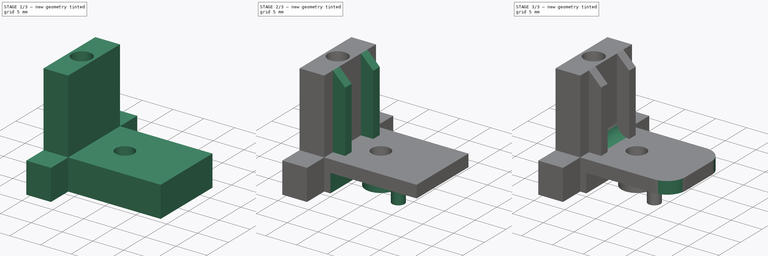
[diagram: build sequence overview — one tinted view per stage of 3, left to right]
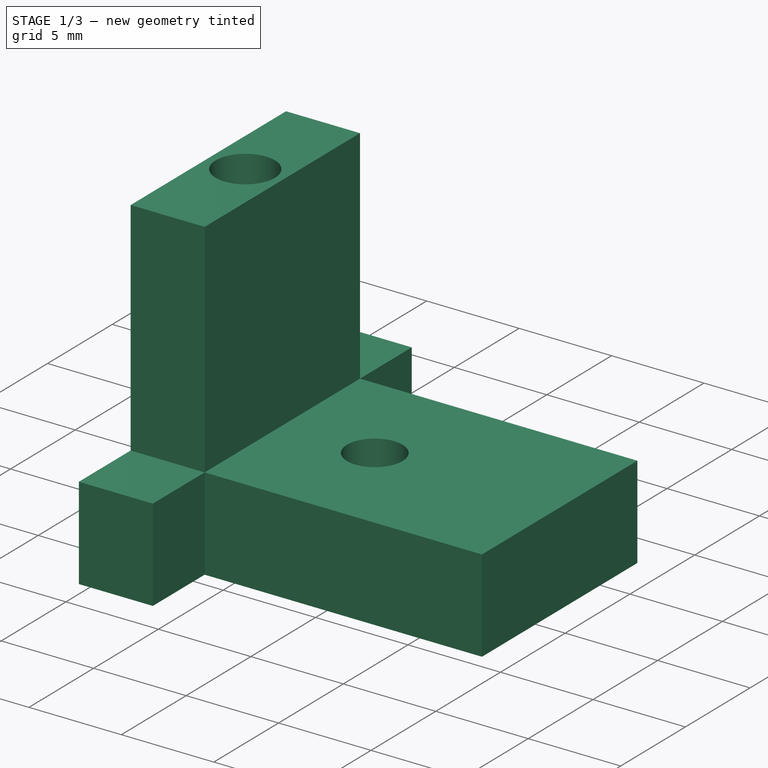
[diagram: stage 1 of 3 — iso view after this stage's code; geometry added in this stage tinted green]
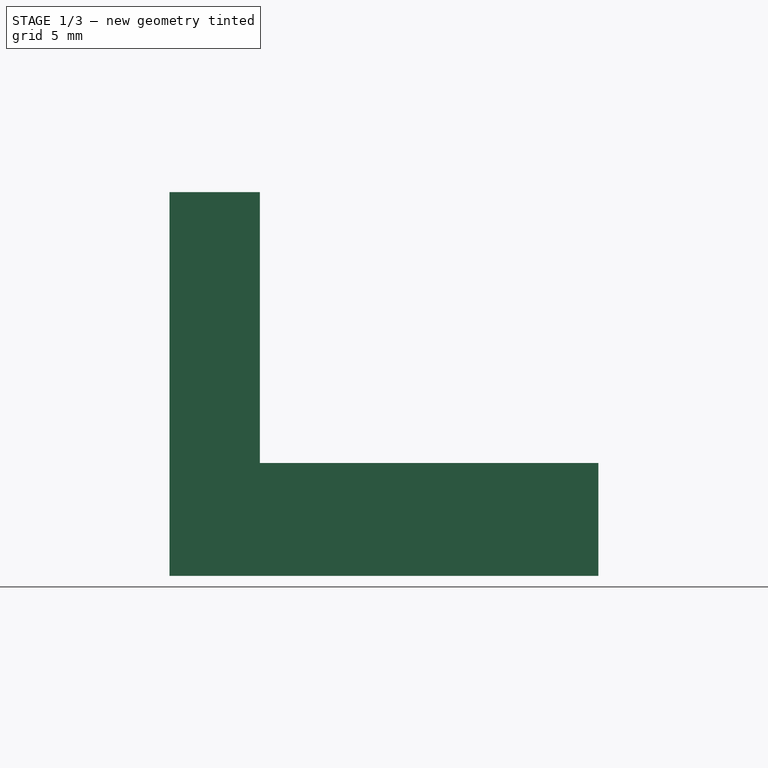
[diagram: stage 1 of 3 — front view after this stage's code; geometry added in this stage tinted green]
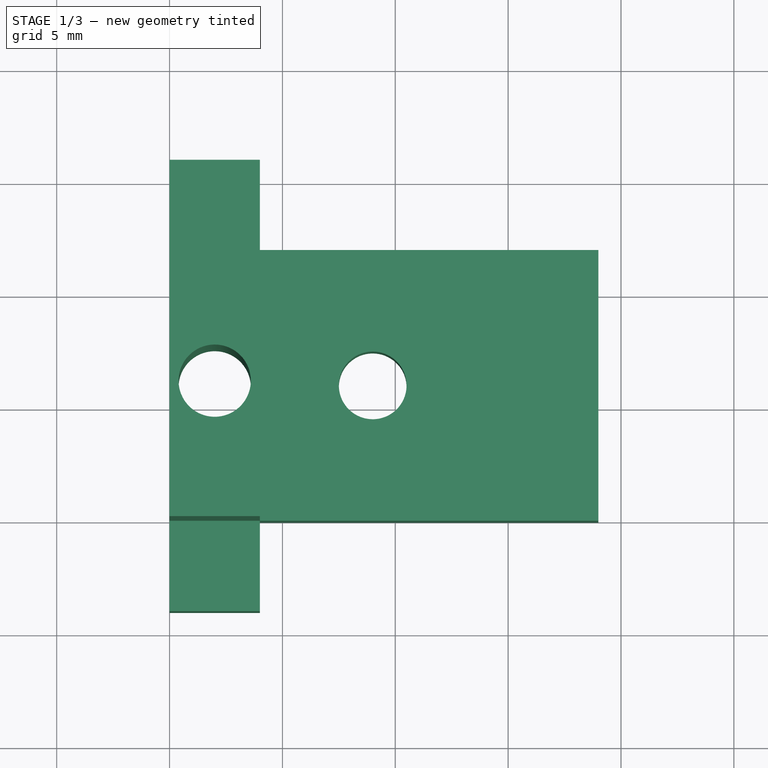
[diagram: stage 1 of 3 — top view after this stage's code; geometry added in this stage tinted green]
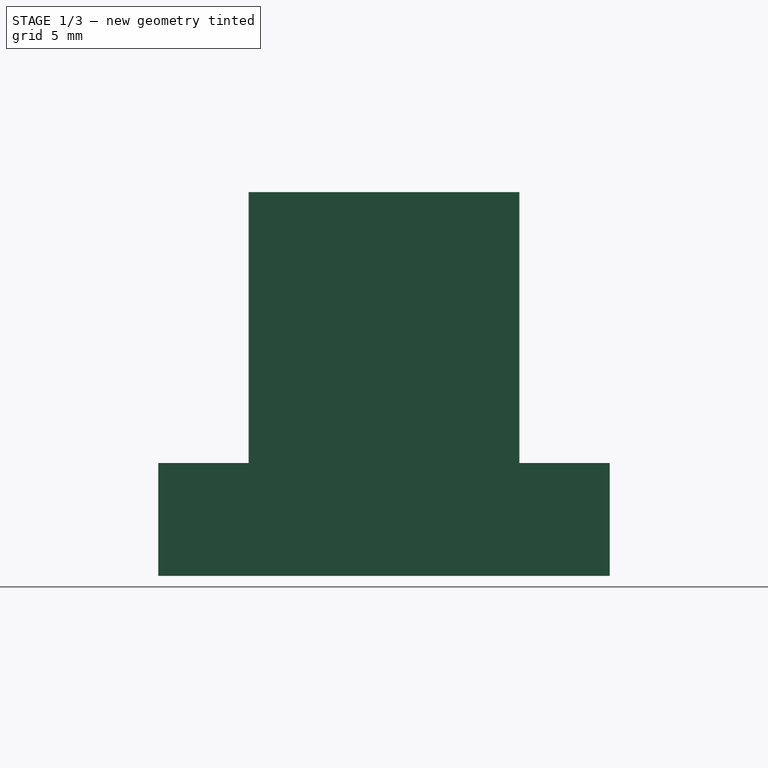
[diagram: stage 1 of 3 — right view after this stage's code; geometry added in this stage tinted green]
FCSTD DOCUMENT  (FreeCAD 0.18R14090 (Git))
Label: XEndStopClip
License: All rights reserved
LicenseURL: http://en.wikipedia.org/wiki/All_rights_reserved
objects: Sketcher::SketchObject×4, PartDesign::Pad×3, PartDesign::Fillet×2, PartDesign::Plane×1, PartDesign::Pocket×1, PartDesign::Chamfer×1, PartDesign::Body×1, App::Part×1
note: 17 computed .brp shape members not serialized (recipe doc carries the construction recipe); baked Part::Feature solids carry a one-line shape summary decoded from their .brp

FEATURE [Sketcher::SketchObject] Sketch  label="BaseSketch"
  MapMode = 5
  Support = -> [XY_Plane001]
  sketch-geometry (8):
    g0: LineSegment StartX=0 StartY=0 StartZ=0 EndX=4 EndY=0 EndZ=0
    g1: LineSegment StartX=4 StartY=0 StartZ=0 EndX=4 EndY=12 EndZ=0
    g2: LineSegment StartX=4 StartY=12 StartZ=0 EndX=0 EndY=12 EndZ=0
    g3: LineSegment StartX=0 StartY=12 StartZ=0 EndX=0 EndY=0 EndZ=0
    g4: LineSegment [constr] StartX=0 StartY=0 StartZ=0 EndX=2 EndY=6 EndZ=0
    g5: LineSegment [constr] StartX=4 StartY=12 StartZ=0 EndX=2 EndY=6 EndZ=0
    g6: LineSegment [constr] StartX=4 StartY=0 StartZ=0 EndX=2 EndY=6 EndZ=0
    g7: Circle CenterX=2 CenterY=6 CenterZ=0 NormalX=0 NormalY=0 NormalZ=1 AngleXU=0 Radius=1.6
  constraints (20):
    c: Coincident(g0,g1)
    c: Coincident(g1,g2)
    c: Coincident(g2,g3)
    c: Coincident(g3,g0)
    c: Horizontal(g0)
    c: Horizontal(g2)
    c: Vertical(g1)
    c: Vertical(g3)
    c: Coincident(g0,g-1)
    c: Distance(g3) = 12
    c: Distance(g2) = 4
    c: Coincident(g4,g0)
    c: Coincident(g5,g1)
    c: Coincident(g5,g4)
    c: Coincident(g6,g0)
    c: Coincident(g6,g4)
    c: Equal(g6,g4)
    c: Equal(g4,g5)
    c: Coincident(g7,g4)
    c: Radius(g7) = 1.6
FEATURE [PartDesign::Pad] Pad  label="BasePad"
  Length = 12
  Length2 = 100
  Profile = -> Sketch
  Type = 0
FEATURE [Sketcher::SketchObject] Sketch001  label="ClipSketch"
  MapMode = 5
  Support = -> [XY_Plane001]
  sketch-geometry (24):
    g0: LineSegment StartX=0 StartY=-4 StartZ=0 EndX=4 EndY=-4 EndZ=0
    g1: LineSegment StartX=4 StartY=16 StartZ=0 EndX=0 EndY=16 EndZ=0
    g2: LineSegment StartX=0 StartY=16 StartZ=0 EndX=0 EndY=-4 EndZ=0
    g3: LineSegment StartX=4 StartY=0 StartZ=0 EndX=19 EndY=0 EndZ=0
    g4: LineSegment StartX=19 StartY=0 StartZ=0 EndX=19 EndY=12 EndZ=0
    g5: LineSegment StartX=19 StartY=12 StartZ=0 EndX=4 EndY=12 EndZ=0
    g6: LineSegment [constr] StartX=4 StartY=12 StartZ=0 EndX=2 EndY=6 EndZ=0
    g7: LineSegment [constr] StartX=4 StartY=0 StartZ=0 EndX=2 EndY=6 EndZ=0
    g8: LineSegment [constr] StartX=0 StartY=0 StartZ=0 EndX=2 EndY=6 EndZ=0
    g9: LineSegment StartX=4 StartY=16 StartZ=0 EndX=4 EndY=12 EndZ=0
    g10: LineSegment StartX=4 StartY=-4 StartZ=0 EndX=4 EndY=0 EndZ=0
    g11: LineSegment [constr] StartX=4 StartY=0 StartZ=0 EndX=4 EndY=12 EndZ=0
    g12: LineSegment [constr] StartX=4.9 StartY=4.32568 StartZ=0 EndX=4.9 EndY=7.67432 EndZ=0
    g13: LineSegment [constr] StartX=4.9 StartY=7.67432 StartZ=0 EndX=2 EndY=9.34863 EndZ=0
    g14: LineSegment [constr] StartX=2 StartY=9.34863 StartZ=0 EndX=-0.9 EndY=7.67432 EndZ=0
    g15: LineSegment [constr] StartX=-0.9 StartY=7.67432 StartZ=0 EndX=-0.9 EndY=4.32568 EndZ=0
    g16: LineSegment [constr] StartX=-0.9 StartY=4.32568 StartZ=0 EndX=2 EndY=2.65137 EndZ=0
    g17: LineSegment [constr] StartX=2 StartY=2.65137 StartZ=0 EndX=4.9 EndY=4.32568 EndZ=0
    g18: Circle [constr] CenterX=2 CenterY=6 CenterZ=0 NormalX=0 NormalY=0 NormalZ=1 AngleXU=0 Radius=3.34863
    g19: Circle CenterX=2 CenterY=6 CenterZ=0 NormalX=0 NormalY=0 NormalZ=1 AngleXU=0 Radius=1.6
    g20: LineSegment [constr] StartX=19 StartY=6 StartZ=0 EndX=9 EndY=6 EndZ=0
    g21: LineSegment [constr] StartX=9 StartY=6 StartZ=0 EndX=9 EndY=0 EndZ=0
    g22: LineSegment [constr] StartX=9 StartY=6 StartZ=0 EndX=9 EndY=12 EndZ=0
    g23: Circle CenterX=9 CenterY=6 CenterZ=0 NormalX=0 NormalY=0 NormalZ=1 AngleXU=0 Radius=1.5
  constraints (63):
    c: Coincident(g1,g2)
    c: Coincident(g2,g0)
    c: Horizontal(g0)
    c: Horizontal(g1)
    c: Vertical(g2)
    c: PointOnObject(g0,g-2)
    c: Distance(g1) = 4
    c: DistanceY(g-1,g0) = -4
    c: DistanceY(g-1,g1) = 16
    c: Coincident(g3,g4)
    c: Coincident(g4,g5)
    c: Horizontal(g3)
    c: Horizontal(g5)
    c: Vertical(g4)
    c: PointOnObject(g3,g-1)
    c: Distance(g4) = 12
    c: Distance(g5) = 15
    c: Coincident(g6,g5)
    c: Coincident(g7,g3)
    c: Coincident(g7,g6)
    c: Coincident(g8,g-1)
    c: Coincident(g8,g6)
    c: Coincident(g9,g1)
    c: Coincident(g9,g5)
    c: Vertical(g9)
    c: Coincident(g10,g0)
    c: Coincident(g10,g3)
    c: Vertical(g10)
    c: Equal(g6,g7)
    c: Equal(g7,g8)
    c: Coincident(g11,g3)
    c: Coincident(g11,g5)
    c: Vertical(g11)
    c: Coincident(g12,g13)
    c: Coincident(g13,g14)
    c: Coincident(g14,g15)
    c: Coincident(g15,g16)
    c: Coincident(g16,g17)
    c: Coincident(g17,g12)
    c: Equal(g12, g13-g17) x5
    c: PointOnObject(g12,g18)
    c: PointOnObject(g13,g18)
    c: PointOnObject(g14,g18)
    c: PointOnObject(g15,g18)
    c: PointOnObject(g16,g18)
    c: PointOnObject(g17,g18)
    c: Coincident(g18,g6)
    c: Vertical(g15)
    c: Distance(g14,g12) = 5.8
    c: Coincident(g19,g6)
    c: Radius(g19) = 1.6
    c: PointOnObject(g20,g4)
    c: Horizontal(g20)
    c: Coincident(g21,g20)
    c: PointOnObject(g21,g3)
    c: Vertical(g21)
    c: Coincident(g22,g20)
    c: PointOnObject(g22,g5)
    c: Vertical(g22)
    c: Equal(g22,g21)
    c: Distance(g20) = 10
    c: Coincident(g23,g20)
    c: Radius(g23) = 1.5
FEATURE [PartDesign::Pad] Pad001  label="ClipPad"
  BaseFeature = -> Pad
  Length = 5
  Length2 = 100
  Profile = -> Sketch001
  Reversed = true
  Type = 0
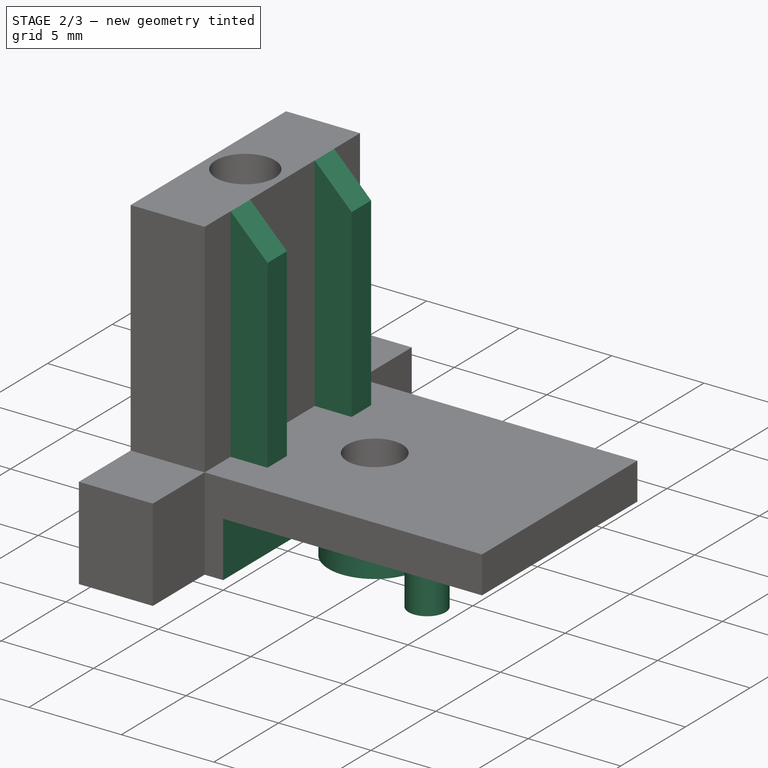
[diagram: stage 2 of 3 — iso view after this stage's code; geometry added in this stage tinted green]
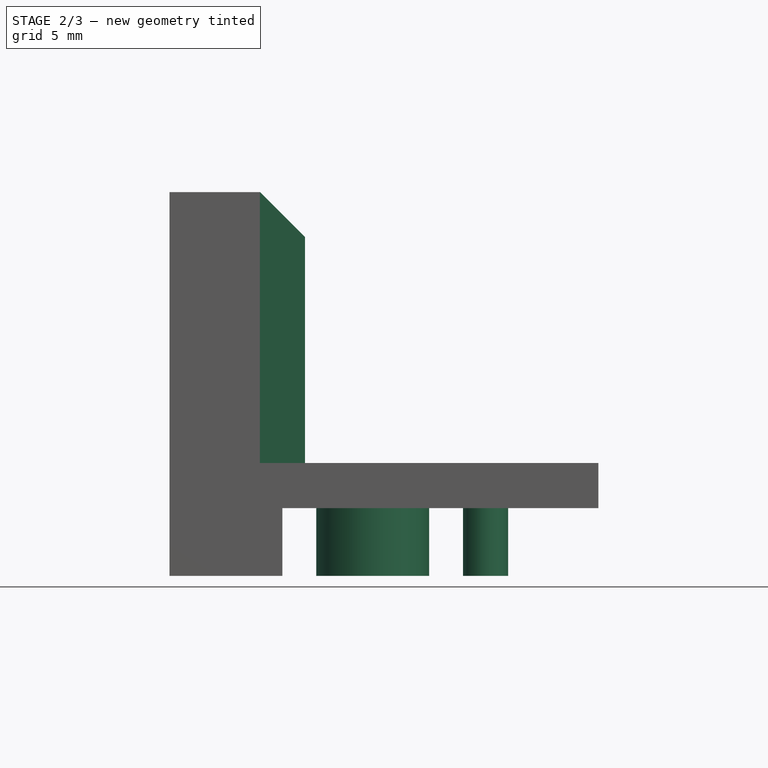
[diagram: stage 2 of 3 — front view after this stage's code; geometry added in this stage tinted green]
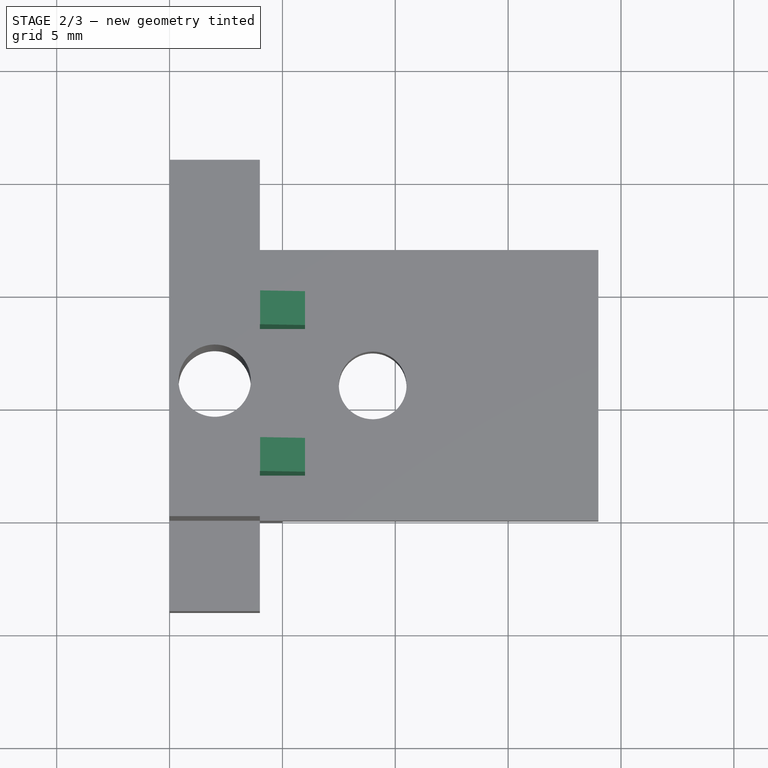
[diagram: stage 2 of 3 — top view after this stage's code; geometry added in this stage tinted green]
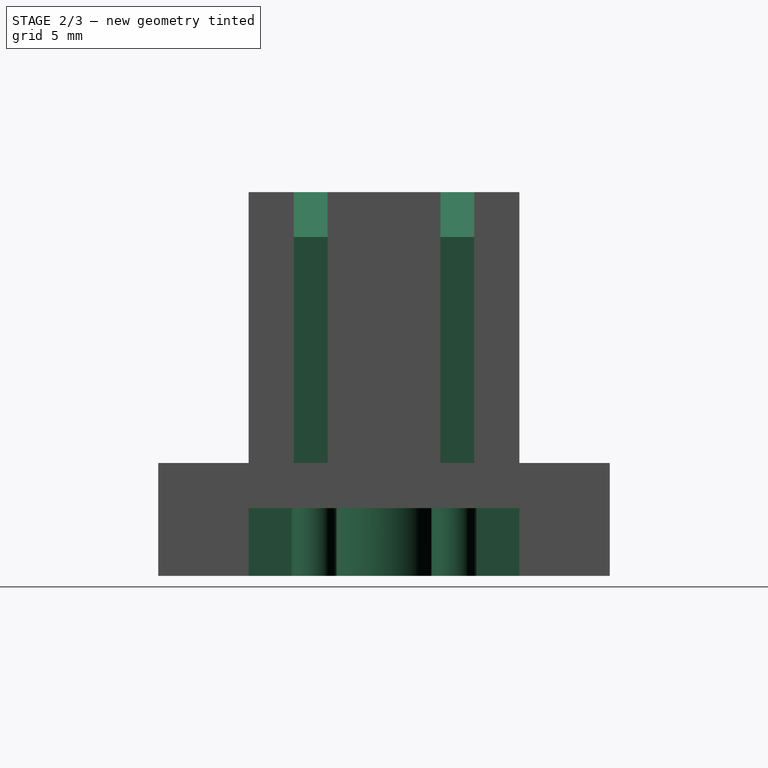
[diagram: stage 2 of 3 — right view after this stage's code; geometry added in this stage tinted green]
FEATURE [PartDesign::Plane] DatumPlane  label="SwitchClipPlane"
  AttachmentOffset = pos=(0,0,-2) rot=(0,0,1;0rad)
  MapMode = 5
  Placement = pos=(0,0,-2) rot=(0,0,1;0rad)
  Support = -> [XY_Plane001]
FEATURE [Sketcher::SketchObject] Sketch002  label="SwitchClipSketch"
  ExternalGeometry = -> [Sketch001]
  MapMode = 5
  Placement = pos=(0,0,-2) rot=(0,0,1;0rad)
  Support = -> [DatumPlane]
  sketch-geometry (12):
    g0: LineSegment StartX=19 StartY=0 StartZ=0 EndX=5 EndY=0 EndZ=0
    g1: LineSegment StartX=5 StartY=0 StartZ=0 EndX=5 EndY=12 EndZ=0
    g2: LineSegment StartX=5 StartY=12 StartZ=0 EndX=19 EndY=12 EndZ=0
    g3: LineSegment StartX=19 StartY=12 StartZ=0 EndX=19 EndY=0 EndZ=0
    g4: Circle CenterX=14 CenterY=9.1 CenterZ=0 NormalX=0 NormalY=0 NormalZ=1 AngleXU=0 Radius=1
    g5: Circle CenterX=14 CenterY=2.9 CenterZ=0 NormalX=0 NormalY=0 NormalZ=1 AngleXU=0 Radius=1
    g6: LineSegment [constr] StartX=14 StartY=9.1 StartZ=0 EndX=14 EndY=12 EndZ=0
    g7: LineSegment [constr] StartX=14 StartY=2.9 StartZ=0 EndX=14 EndY=0 EndZ=0
    g8: LineSegment [constr] StartX=14 StartY=2.9 StartZ=0 EndX=14 EndY=6 EndZ=0
    g9: LineSegment [constr] StartX=14 StartY=6 StartZ=0 EndX=14 EndY=9.1 EndZ=0
    g10: Circle CenterX=9 CenterY=6 CenterZ=0 NormalX=0 NormalY=0 NormalZ=1 AngleXU=0 Radius=2.5
    g11: LineSegment [constr] StartX=9 StartY=6 StartZ=0 EndX=14 EndY=6 EndZ=0
  constraints (32):
    c: Coincident(g0,g1)
    c: Coincident(g1,g2)
    c: Coincident(g2,g3)
    c: Coincident(g3,g0)
    c: Horizontal(g0)
    c: Horizontal(g2)
    c: Vertical(g1)
    c: Coincident(g0,g-3)
    c: Coincident(g2,g-3)
    c: Distance(g2) = 14
    c: Equal(g4,g5)
    c: Radius(g4) = 1
    c: Coincident(g6,g4)
    c: PointOnObject(g6,g2)
    c: Vertical(g6)
    c: Coincident(g7,g5)
    c: PointOnObject(g7,g0)
    c: Vertical(g7)
    c: Equal(g7,g6)
    c: Coincident(g8,g5)
    c: Vertical(g8)
    c: Coincident(g9,g8)
    c: Coincident(g9,g4)
    c: Vertical(g9)
    c: Equal(g9,g8)
    c: Distance(g4,g5) = 6.2
    c: Radius(g10) = 2.5
    c: Distance(g6,g2) = 5
    c: Coincident(g11,g10)
    c: Coincident(g11,g8)
    c: Horizontal(g11)
    c: Distance(g11) = 5
FEATURE [PartDesign::Pocket] Pocket  label="SwitchClipPocket"
  BaseFeature = -> Pad001
  Length = 5
  Length2 = 100
  Profile = -> Sketch002
  Type = 1
FEATURE [Sketcher::SketchObject] Sketch003  label="StiffenersSketch"
  MapMode = 5
  Support = -> [XY_Plane001]
  sketch-geometry (11):
    g0: LineSegment StartX=4 StartY=10 StartZ=0 EndX=6 EndY=10 EndZ=0
    g1: LineSegment StartX=6 StartY=10 StartZ=0 EndX=6 EndY=8.5 EndZ=0
    g2: LineSegment StartX=6 StartY=8.5 StartZ=0 EndX=4 EndY=8.5 EndZ=0
    g3: LineSegment StartX=4 StartY=8.5 StartZ=0 EndX=4 EndY=10 EndZ=0
    g4: LineSegment StartX=4 StartY=3.5 StartZ=0 EndX=6 EndY=3.5 EndZ=0
    g5: LineSegment StartX=6 StartY=3.5 StartZ=0 EndX=6 EndY=2 EndZ=0
    g6: LineSegment StartX=6 StartY=2 StartZ=0 EndX=4 EndY=2 EndZ=0
    g7: LineSegment StartX=4 StartY=2 StartZ=0 EndX=4 EndY=3.5 EndZ=0
    g8: LineSegment [constr] StartX=4 StartY=8.5 StartZ=0 EndX=4 EndY=3.5 EndZ=0
    g9: LineSegment [constr] StartX=4 StartY=3.5 StartZ=0 EndX=0 EndY=3.5 EndZ=0
    g10: LineSegment [constr] StartX=6 StartY=8.5 StartZ=0 EndX=6 EndY=3.5 EndZ=0
  constraints (31):
    c: Coincident(g0,g1)
    c: Coincident(g1,g2)
    c: Coincident(g2,g3)
    c: Coincident(g3,g0)
    c: Horizontal(g0)
    c: Horizontal(g2)
    c: Vertical(g1)
    c: Vertical(g3)
    c: Coincident(g4,g5)
    c: Coincident(g5,g6)
    c: Coincident(g6,g7)
    c: Coincident(g7,g4)
    c: Horizontal(g4)
    c: Horizontal(g6)
    c: Vertical(g5)
    c: Vertical(g7)
    c: Coincident(g8,g2)
    c: Coincident(g8,g4)
    c: Vertical(g8)
    c: Coincident(g9,g4)
    c: PointOnObject(g9,g-2)
    c: Horizontal(g9)
    c: Distance(g9) = 4
    c: Distance(g8) = 5
    c: Coincident(g10,g1)
    c: Coincident(g10,g4)
    c: Vertical(g10)
    c: Equal(g3,g7)
    c: Distance(g0) = 2
    c: Distance(g1) = 1.5
    c: DistanceY(g-1,g9) = 3.5
FEATURE [PartDesign::Pad] Pad002  label="StiffenersPad"
  BaseFeature = -> Pocket
  Length = 12
  Length2 = 100
  Profile = -> Sketch003
  Type = 0
FEATURE [PartDesign::Chamfer] Chamfer  label="ClipChamfer"
  Base = -> Pad002 [Edge31,Edge39]
  BaseFeature = -> Pad002
  Size = 1.99
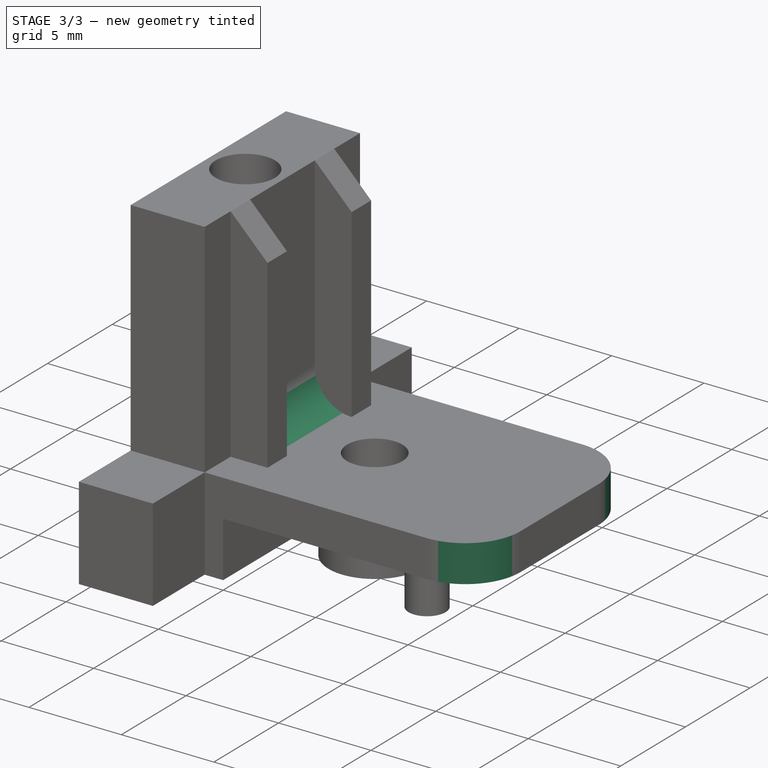
[diagram: stage 3 of 3 — iso view after this stage's code; geometry added in this stage tinted green]
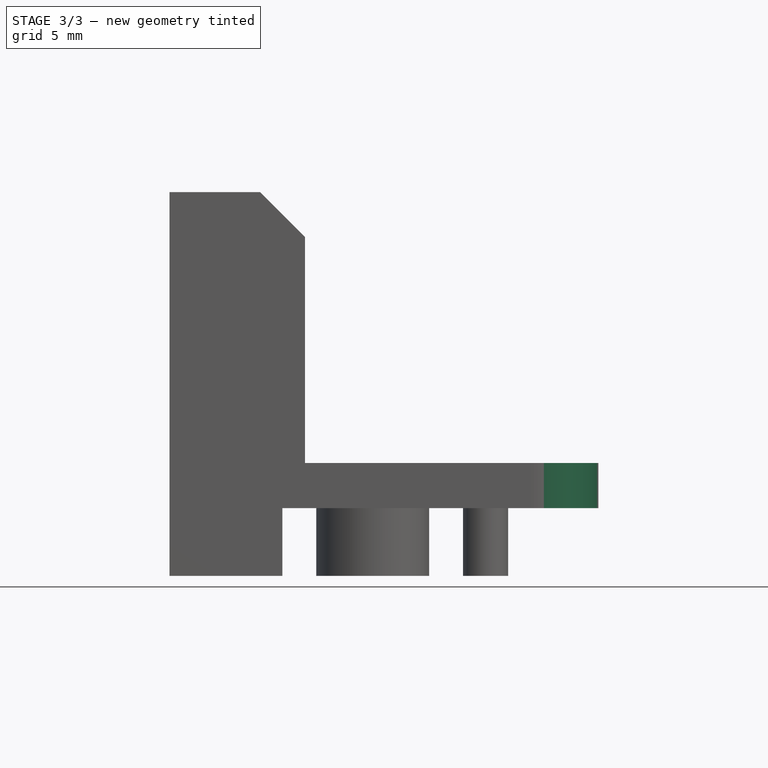
[diagram: stage 3 of 3 — front view after this stage's code; geometry added in this stage tinted green]
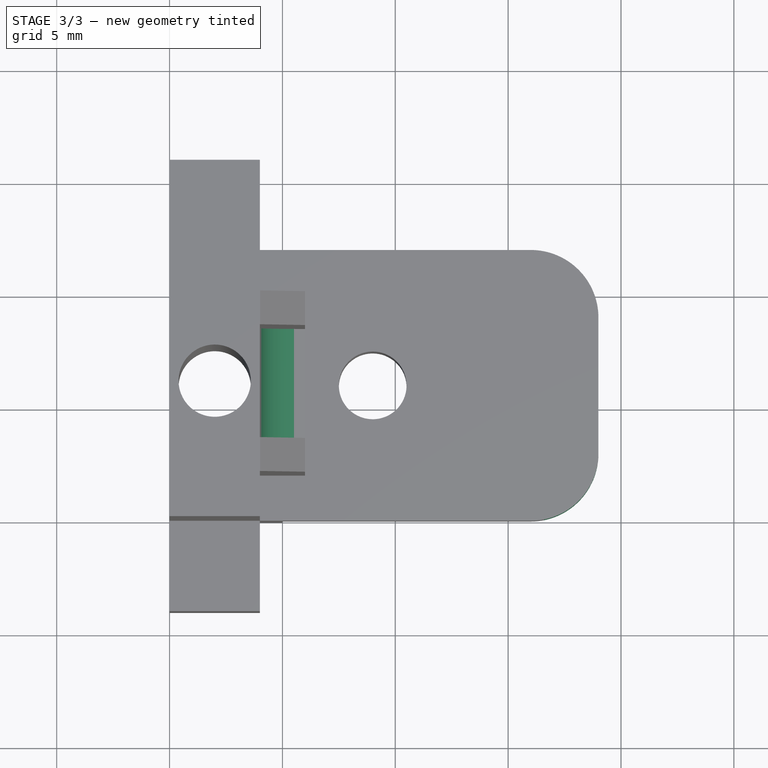
[diagram: stage 3 of 3 — top view after this stage's code; geometry added in this stage tinted green]
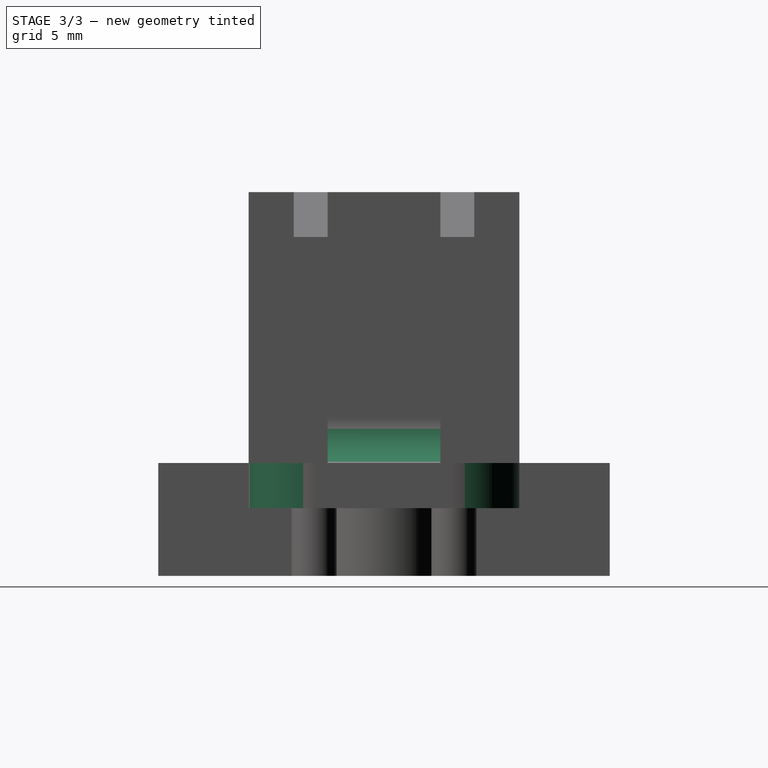
[diagram: stage 3 of 3 — right view after this stage's code; geometry added in this stage tinted green]
FEATURE [PartDesign::Fillet] Fillet002  label="ClipFillet3"
  Base = -> Chamfer [Edge22]
  BaseFeature = -> Chamfer
  Radius = 2
FEATURE [PartDesign::Fillet] Fillet  label="ClipFillet"
  Base = -> Fillet002 [Edge53,Edge62]
  BaseFeature = -> Fillet002
  Radius = 3
FEATURE [PartDesign::Body] Body  label="PartBody"
  Group = -> [Sketch,Pad,Sketch001,Pad001,DatumPlane,Sketch002,Pocket,Sketch003,Pad002,Chamfer,Fillet002,Fillet]
  Origin = -> Origin001
  Tip = -> Fillet
FEATURE [App::Part] Part  label="XEndStopClipPart"
  Group = -> [Body]
  License = CC BY 3.0
  LicenseURL = http://creativecommons.org/licenses/by/3.0/
  Origin = -> Origin
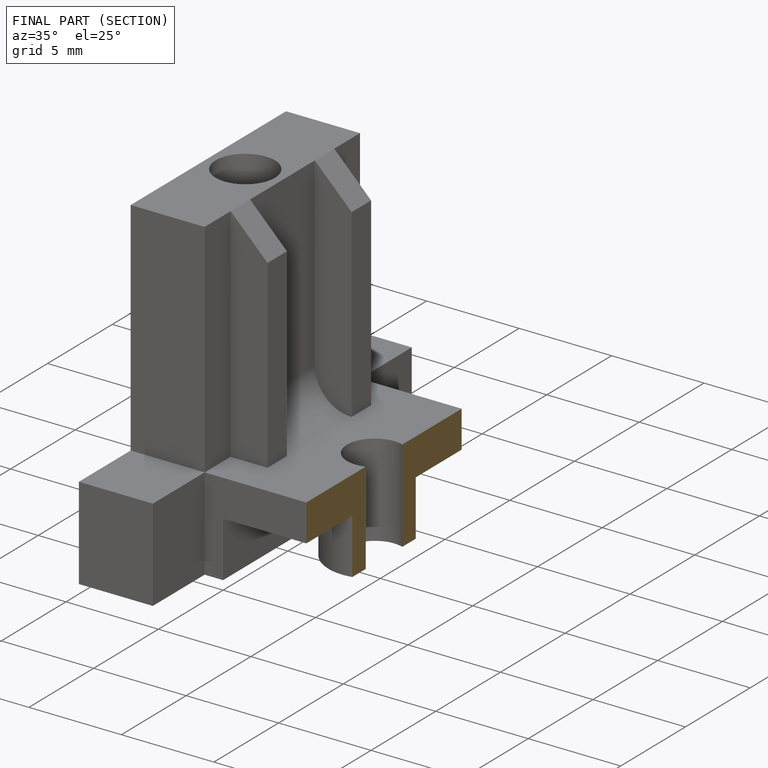
[diagram: finished part — half-section view (interior)]
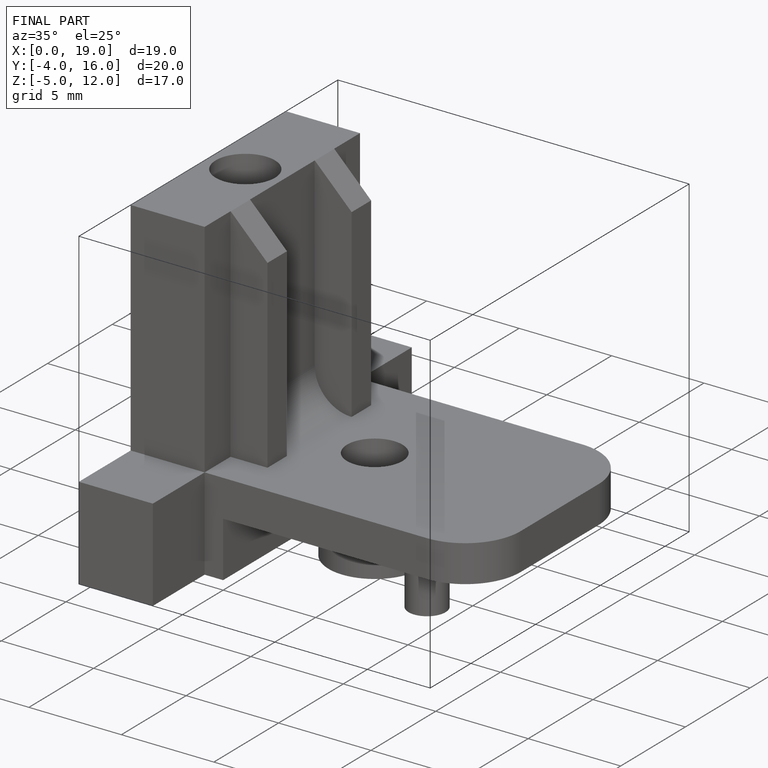
[diagram: finished part — iso view with bounding-box wireframe]
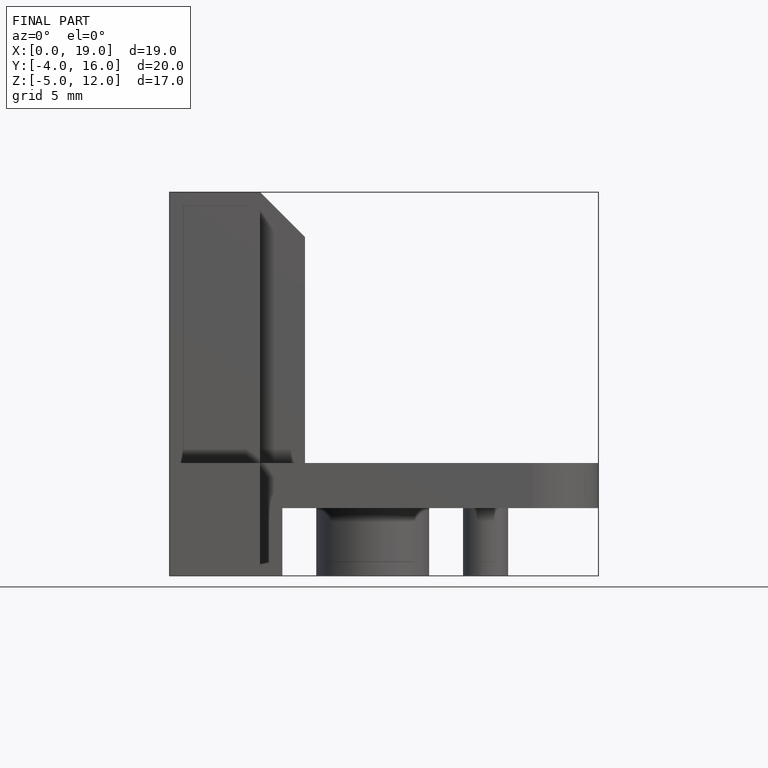
[diagram: finished part — front view with bounding-box wireframe]
